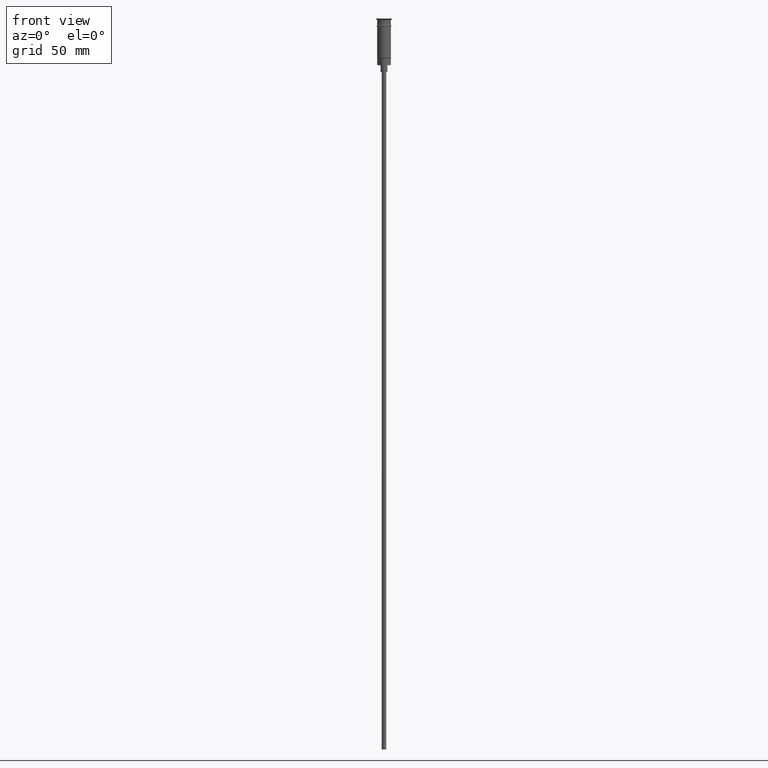
[diagram: clean part render]
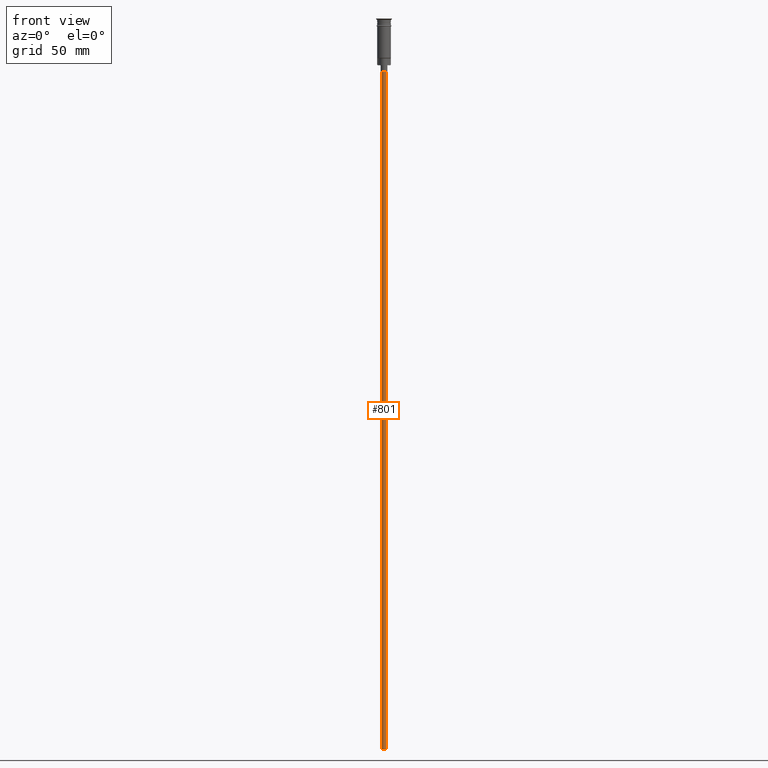
[diagram: same view with one face highlighted and labeled with its STEP entity id]
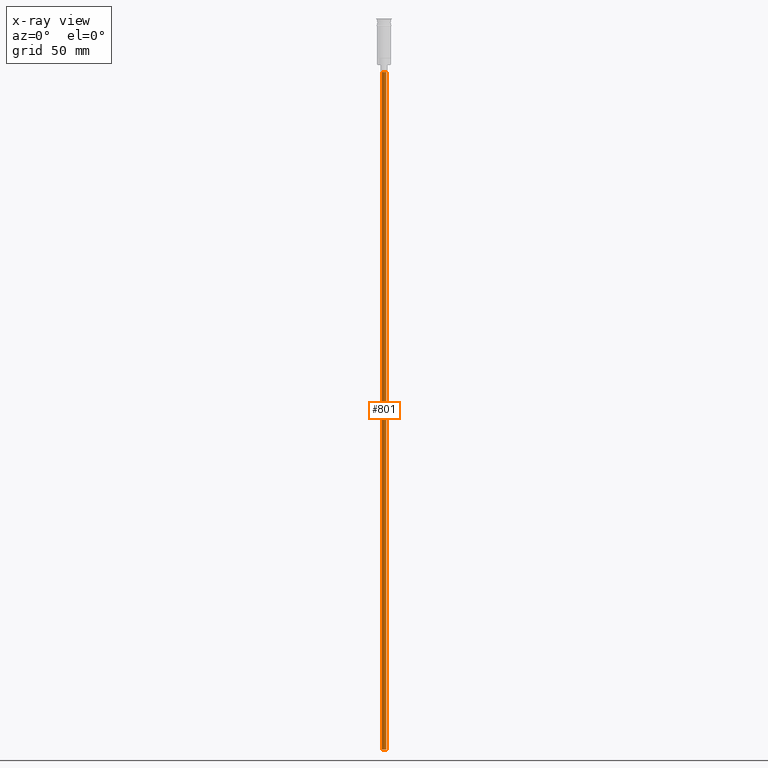
[diagram: x-ray of the same camera — body ghosted, the highlighted face saturated]
A machine part, front view. The second image highlights one B-rep face of the part: STEP entity #801.
The next image is the same camera in x-ray: the body ghosted, the highlighted face saturated — about 0% of this face is hidden behind the body in this view.
In plain terms, the highlighted cylindrical surface (edge-blend (fillet) strip) has radius 1 mm, axis along (-0, -0, 1).
Its self-contained STEP definition (entity closure, byte-faithful):
#109 = DIRECTION ( 'NONE',  ( -1.000000000000000000, 0.000000000000000000, 0.000000000000000000 ) ) ;
#161 = DIRECTION ( 'NONE',  ( -0.000000000000000000, -0.000000000000000000, 1.000000000000000000 ) ) ;
#252 = VERTEX_POINT ( 'NONE', #730 ) ;
#253 = CARTESIAN_POINT ( 'NONE',  ( 0.000000000000000000, 0.000000000000000000, -23.50000000000000000 ) ) ;
#328 = VECTOR ( 'NONE', #932, 1000.000000000000000 ) ;
#351 = CARTESIAN_POINT ( 'NONE',  ( 0.9999999999999997780, 0.000000000000000000, -23.50000000000000000 ) ) ;
#401 = CIRCLE ( 'NONE', #1567, 0.9999999999999997780 ) ;
#481 = DIRECTION ( 'NONE',  ( -1.000000000000000000, 0.000000000000000000, 0.000000000000000000 ) ) ;
#504 = DIRECTION ( 'NONE',  ( 0.000000000000000000, 0.000000000000000000, -1.000000000000000000 ) ) ;
#510 = CIRCLE ( 'NONE', #687, 0.9999999999999997780 ) ;
#513 = VERTEX_POINT ( 'NONE', #1582 ) ;
#544 = CARTESIAN_POINT ( 'NONE',  ( 0.9999999999999997780, 0.000000000000000000, -320.5000000000000000 ) ) ;
#562 = LINE ( 'NONE', #1058, #328 ) ;
#630 = ORIENTED_EDGE ( 'NONE', *, *, #646, .F. ) ;
#646 = EDGE_CURVE ( 'NONE', #513, #1421, #510, .T. ) ;
#687 = AXIS2_PLACEMENT_3D ( 'NONE', #1223, #1112, #109 ) ;
#730 = CARTESIAN_POINT ( 'NONE',  ( -0.9999999999999997780, 1.224646799147352961E-16, -23.50000000000000000 ) ) ;
#785 = DIRECTION ( 'NONE',  ( -0.000000000000000000, -0.000000000000000000, 1.000000000000000000 ) ) ;
#801 = ADVANCED_FACE ( 'NONE', ( #1174 ), #884, .T. ) ;
#846 = ORIENTED_EDGE ( 'NONE', *, *, #1175, .T. ) ;
#874 = EDGE_CURVE ( 'NONE', #1421, #252, #562, .T. ) ;
#884 = CYLINDRICAL_SURFACE ( 'NONE', #1341, 0.9999999999999997780 ) ;
#913 = VECTOR ( 'NONE', #785, 1000.000000000000000 ) ;
#932 = DIRECTION ( 'NONE',  ( -0.000000000000000000, -0.000000000000000000, 1.000000000000000000 ) ) ;
#1033 = CARTESIAN_POINT ( 'NONE',  ( 0.000000000000000000, 0.000000000000000000, -320.5000000000000000 ) ) ;
#1058 = CARTESIAN_POINT ( 'NONE',  ( -0.9999999999999997780, 1.224646799147352961E-16, -320.5000000000000000 ) ) ;
#1059 = VERTEX_POINT ( 'NONE', #351 ) ;
#1065 = EDGE_CURVE ( 'NONE', #1059, #252, #401, .T. ) ;
#1112 = DIRECTION ( 'NONE',  ( 0.000000000000000000, 0.000000000000000000, -1.000000000000000000 ) ) ;
#1143 = LINE ( 'NONE', #544, #913 ) ;
#1174 = FACE_OUTER_BOUND ( 'NONE', #1236, .T. ) ;
#1175 = EDGE_CURVE ( 'NONE', #513, #1059, #1143, .T. ) ;
#1223 = CARTESIAN_POINT ( 'NONE',  ( 0.000000000000000000, 0.000000000000000000, -320.5000000000000000 ) ) ;
#1236 = EDGE_LOOP ( 'NONE', ( #1534, #630, #846, #1425 ) ) ;
#1250 = CARTESIAN_POINT ( 'NONE',  ( -0.9999999999999997780, 1.224646799147352961E-16, -320.5000000000000000 ) ) ;
#1341 = AXIS2_PLACEMENT_3D ( 'NONE', #1033, #161, #1531 ) ;
#1421 = VERTEX_POINT ( 'NONE', #1250 ) ;
#1425 = ORIENTED_EDGE ( 'NONE', *, *, #1065, .T. ) ;
#1531 = DIRECTION ( 'NONE',  ( 1.000000000000000000, 0.000000000000000000, 0.000000000000000000 ) ) ;
#1534 = ORIENTED_EDGE ( 'NONE', *, *, #874, .F. ) ;
#1567 = AXIS2_PLACEMENT_3D ( 'NONE', #253, #504, #481 ) ;
#1582 = CARTESIAN_POINT ( 'NONE',  ( 0.9999999999999997780, 0.000000000000000000, -320.5000000000000000 ) ) ;